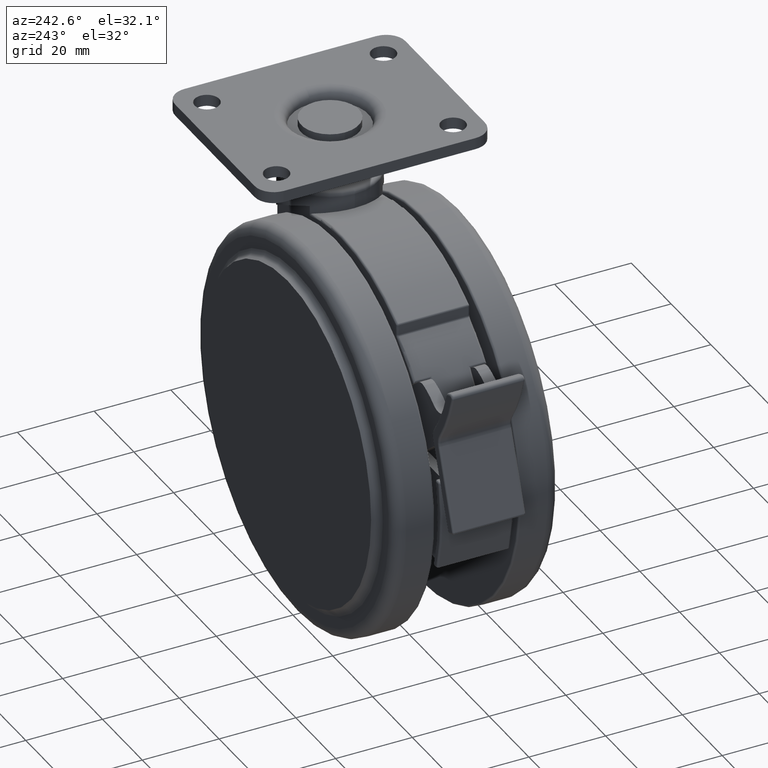
[diagram: clean part render]
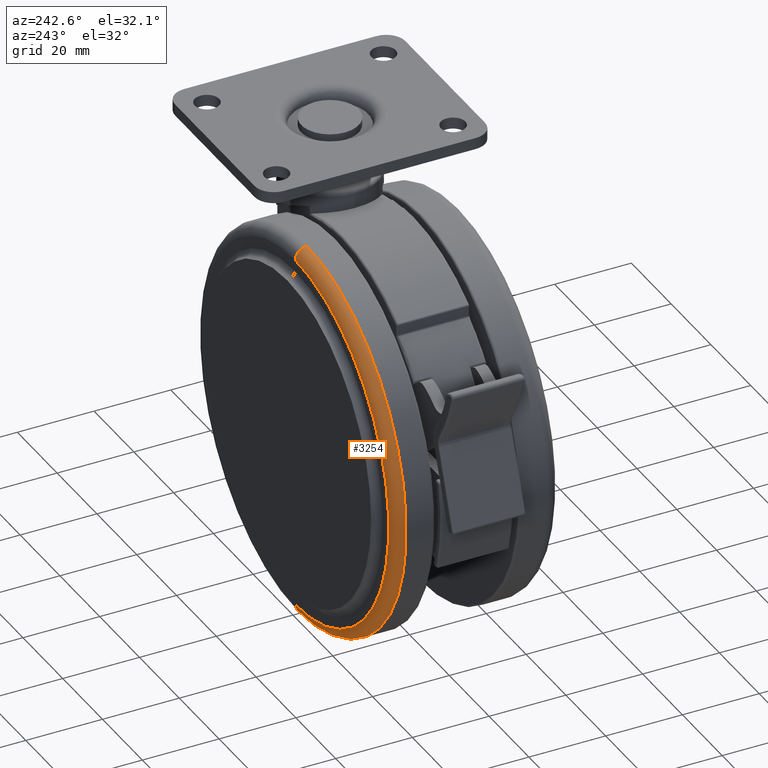
[diagram: same view with one face highlighted and labeled with its STEP entity id]
A machine part, auxiliary view. The second image highlights one B-rep face of the part: STEP entity #3254.
In plain terms, the highlighted toroidal blend (fillet) surface has major radius 47 mm and minor (blend) radius 3 mm.
Its self-contained STEP definition (entity closure, byte-faithful):
#268 = CARTESIAN_POINT ( 'NONE',  ( -24.00000000000000000, 18.50000000000000000, -100.5000000000000000 ) ) ;
#465 = ORIENTED_EDGE ( 'NONE', *, *, #2009, .T. ) ;
#924 = AXIS2_PLACEMENT_3D ( 'NONE', #3822, #8482, #4474 ) ;
#934 = DIRECTION ( 'NONE',  ( 4.625929269271486900E-015, 1.000000000000000000, 0.0000000000000000000 ) ) ;
#999 = CARTESIAN_POINT ( 'NONE',  ( -24.00000000000000700, 18.50000000000000000, -6.499999999999999100 ) ) ;
#1036 = VERTEX_POINT ( 'NONE', #5618 ) ;
#1120 = DIRECTION ( 'NONE',  ( -4.161225942742110400E-015, -1.000000000000000000, 0.0000000000000000000 ) ) ;
#1669 = DIRECTION ( 'NONE',  ( -4.625929269271486900E-015, -1.000000000000000000, 0.0000000000000000000 ) ) ;
#2009 = EDGE_CURVE ( 'NONE', #4618, #1036, #4002, .T. ) ;
#2613 = VERTEX_POINT ( 'NONE', #4164 ) ;
#2836 = AXIS2_PLACEMENT_3D ( 'NONE', #8243, #6947, #8275 ) ;
#2945 = AXIS2_PLACEMENT_3D ( 'NONE', #999, #5633, #1669 ) ;
#3087 = CARTESIAN_POINT ( 'NONE',  ( -24.00000000000000000, 21.50000000000000000, -6.499999999999999100 ) ) ;
#3254 = ADVANCED_FACE ( 'NONE', ( #7990 ), #6225, .T. ) ;
#3675 = EDGE_CURVE ( 'NONE', #7863, #4618, #5671, .T. ) ;
#3822 = CARTESIAN_POINT ( 'NONE',  ( -24.00000000000000000, 21.50000000000000000, -53.50000000000000000 ) ) ;
#4002 = CIRCLE ( 'NONE', #924, 47.00000000000000700 ) ;
#4120 = AXIS2_PLACEMENT_3D ( 'NONE', #5091, #1120, #5753 ) ;
#4164 = CARTESIAN_POINT ( 'NONE',  ( -24.00000000000000000, 18.50000000000000000, -103.5000000000000100 ) ) ;
#4290 = CIRCLE ( 'NONE', #4120, 50.00000000000000700 ) ;
#4474 = DIRECTION ( 'NONE',  ( 0.0000000000000000000, 0.0000000000000000000, -1.000000000000000000 ) ) ;
#4618 = VERTEX_POINT ( 'NONE', #3087 ) ;
#4885 = ORIENTED_EDGE ( 'NONE', *, *, #7644, .F. ) ;
#4899 = DIRECTION ( 'NONE',  ( 1.000000000000000000, -4.161225942742110400E-015, 0.0000000000000000000 ) ) ;
#5053 = ORIENTED_EDGE ( 'NONE', *, *, #3675, .T. ) ;
#5091 = CARTESIAN_POINT ( 'NONE',  ( -24.00000000000000000, 18.50000000000000000, -53.50000000000000000 ) ) ;
#5150 = CARTESIAN_POINT ( 'NONE',  ( -24.00000000000000700, 18.50000000000000000, -3.499999999999997300 ) ) ;
#5618 = CARTESIAN_POINT ( 'NONE',  ( -24.00000000000000000, 21.50000000000000000, -100.5000000000000000 ) ) ;
#5633 = DIRECTION ( 'NONE',  ( -1.000000000000000000, 4.161225942742110400E-015, -1.224646799147353200E-016 ) ) ;
#5653 = EDGE_CURVE ( 'NONE', #7863, #2613, #4290, .T. ) ;
#5671 = CIRCLE ( 'NONE', #2945, 2.999999999999999100 ) ;
#5753 = DIRECTION ( 'NONE',  ( 0.0000000000000000000, 0.0000000000000000000, -1.000000000000000000 ) ) ;
#5901 = CIRCLE ( 'NONE', #6678, 2.999999999999999100 ) ;
#6225 = TOROIDAL_SURFACE ( 'NONE', #2836, 47.00000000000000000, 3.000000000000000000 ) ;
#6678 = AXIS2_PLACEMENT_3D ( 'NONE', #268, #4899, #934 ) ;
#6947 = DIRECTION ( 'NONE',  ( 4.161225942742110400E-015, 1.000000000000000000, 0.0000000000000000000 ) ) ;
#7390 = ORIENTED_EDGE ( 'NONE', *, *, #5653, .F. ) ;
#7644 = EDGE_CURVE ( 'NONE', #2613, #1036, #5901, .T. ) ;
#7863 = VERTEX_POINT ( 'NONE', #5150 ) ;
#7990 = FACE_OUTER_BOUND ( 'NONE', #8380, .T. ) ;
#8243 = CARTESIAN_POINT ( 'NONE',  ( -24.00000000000000000, 18.50000000000000000, -53.50000000000000000 ) ) ;
#8275 = DIRECTION ( 'NONE',  ( 0.0000000000000000000, 0.0000000000000000000, -1.000000000000000000 ) ) ;
#8380 = EDGE_LOOP ( 'NONE', ( #7390, #5053, #465, #4885 ) ) ;
#8482 = DIRECTION ( 'NONE',  ( -4.161225942742110400E-015, -1.000000000000000000, 0.0000000000000000000 ) ) ;